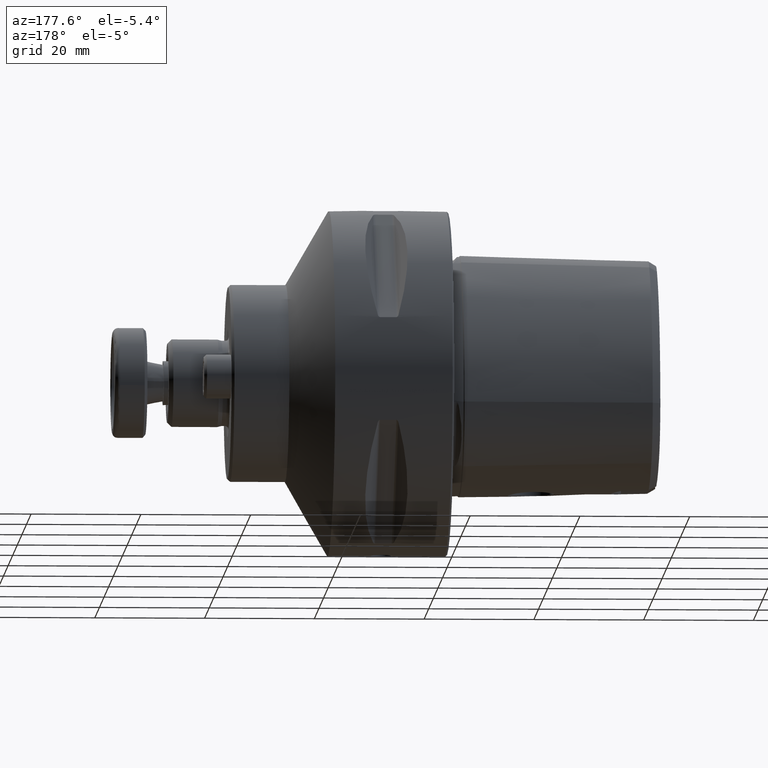
[diagram: clean part render]
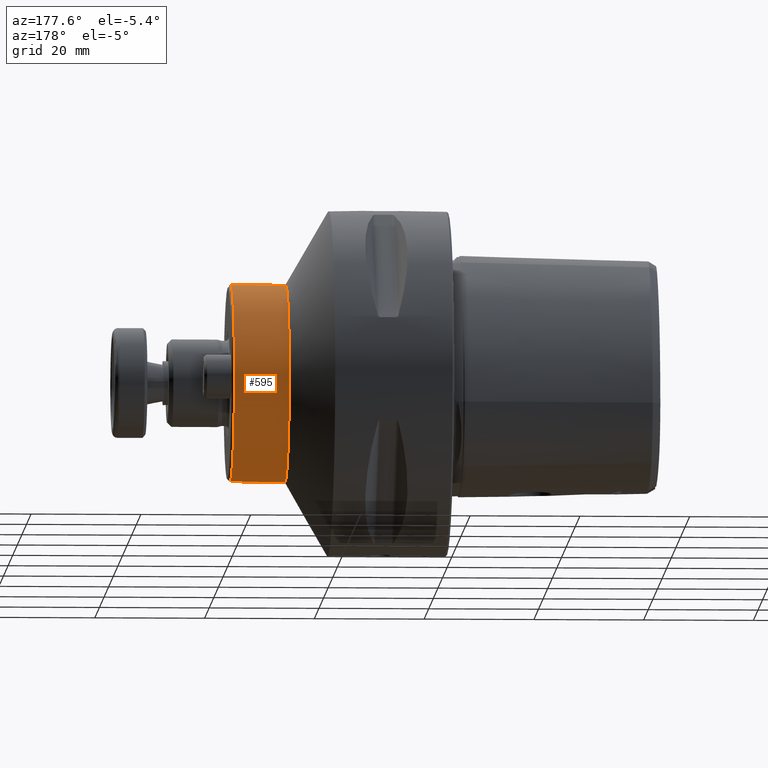
[diagram: same view with one face highlighted and labeled with its STEP entity id]
A machine part, auxiliary view. The second image highlights one B-rep face of the part: STEP entity #595.
In plain terms, the highlighted cylindrical surface (bore or boss wall) has radius 18 mm, axis along (1, 0, 0).
Its self-contained STEP definition (entity closure, byte-faithful):
#595 = ADVANCED_FACE( '', ( #1258, #1259 ), #1260, .T. );
#1258 = FACE_OUTER_BOUND( '', #1992, .T. );
#1259 = FACE_OUTER_BOUND( '', #1993, .T. );
#1260 = CYLINDRICAL_SURFACE( '', #1994, 18.0000000000000 );
#1992 = EDGE_LOOP( '', ( #3229 ) );
#1993 = EDGE_LOOP( '', ( #3230 ) );
#1994 = AXIS2_PLACEMENT_3D( '', #3231, #3232, #3233 );
#3229 = ORIENTED_EDGE( '', *, *, #4289, .T. );
#3230 = ORIENTED_EDGE( '', *, *, #3990, .F. );
#3231 = CARTESIAN_POINT( '', ( 21.7000000000000, 0.000000000000000, 6.12323399573676E-016 ) );
#3232 = DIRECTION( '', ( 1.00000000000000, -0.000000000000000, -0.000000000000000 ) );
#3233 = DIRECTION( '', ( 0.000000000000000, 0.000000000000000, 1.00000000000000 ) );
#3990 = EDGE_CURVE( '', #4669, #4669, #4670, .T. );
#4289 = EDGE_CURVE( '', #5118, #5118, #5119, .T. );
#4669 = VERTEX_POINT( '', #5750 );
#4670 = CIRCLE( '', #5751, 18.0000000000000 );
#5118 = VERTEX_POINT( '', #6738 );
#5119 = CIRCLE( '', #6739, 18.0000000000000 );
#5750 = CARTESIAN_POINT( '', ( 29.4942286340599, 0.000000000000000, 18.0000000000000 ) );
#5751 = AXIS2_PLACEMENT_3D( '', #7250, #7251, #7252 );
#6738 = CARTESIAN_POINT( '', ( 39.5000000000000, 0.000000000000000, 18.0000000000000 ) );
#6739 = AXIS2_PLACEMENT_3D( '', #7597, #7598, #7599 );
#7250 = CARTESIAN_POINT( '', ( 29.4942286340599, 0.000000000000000, 6.12323399573676E-016 ) );
#7251 = DIRECTION( '', ( -1.00000000000000, 0.000000000000000, 0.000000000000000 ) );
#7252 = DIRECTION( '', ( 0.000000000000000, 0.000000000000000, 1.00000000000000 ) );
#7597 = CARTESIAN_POINT( '', ( 39.5000000000000, 0.000000000000000, 6.12323399573676E-016 ) );
#7598 = DIRECTION( '', ( -1.00000000000000, 0.000000000000000, 0.000000000000000 ) );
#7599 = DIRECTION( '', ( 0.000000000000000, 0.000000000000000, 1.00000000000000 ) );